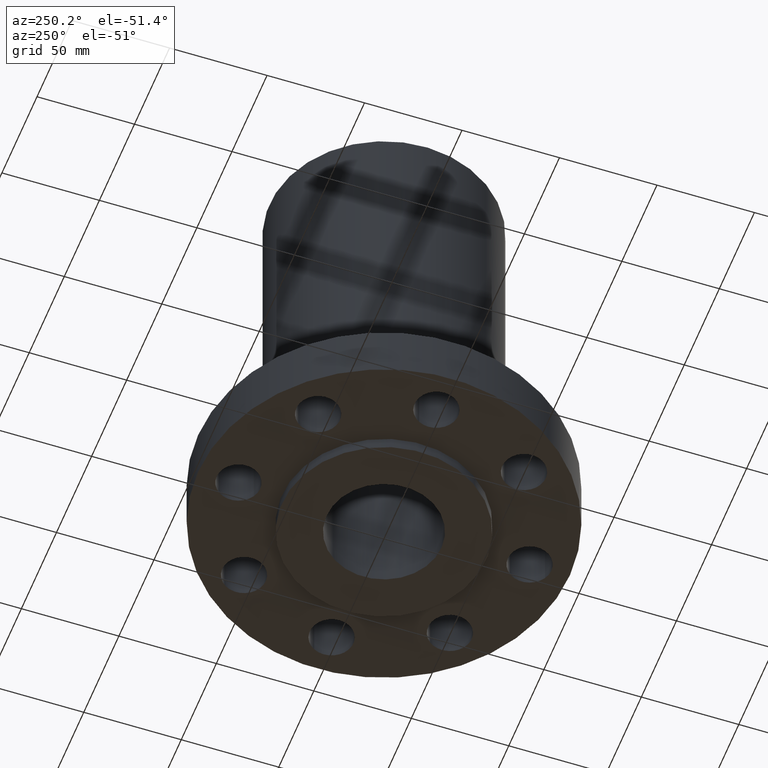
[diagram: clean part render]
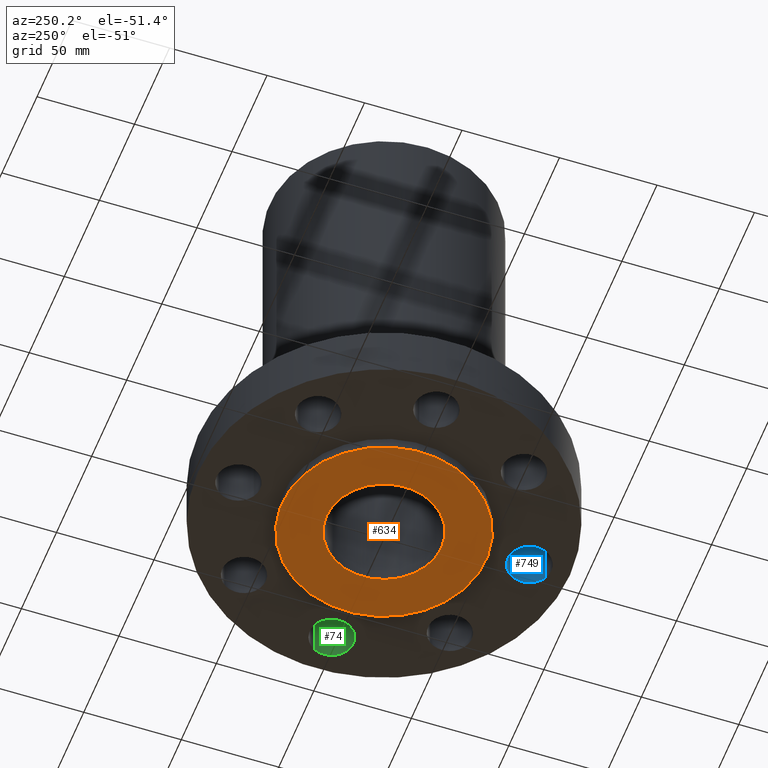
[diagram: same view with three faces highlighted in distinct colors, each labeled with its STEP entity id]
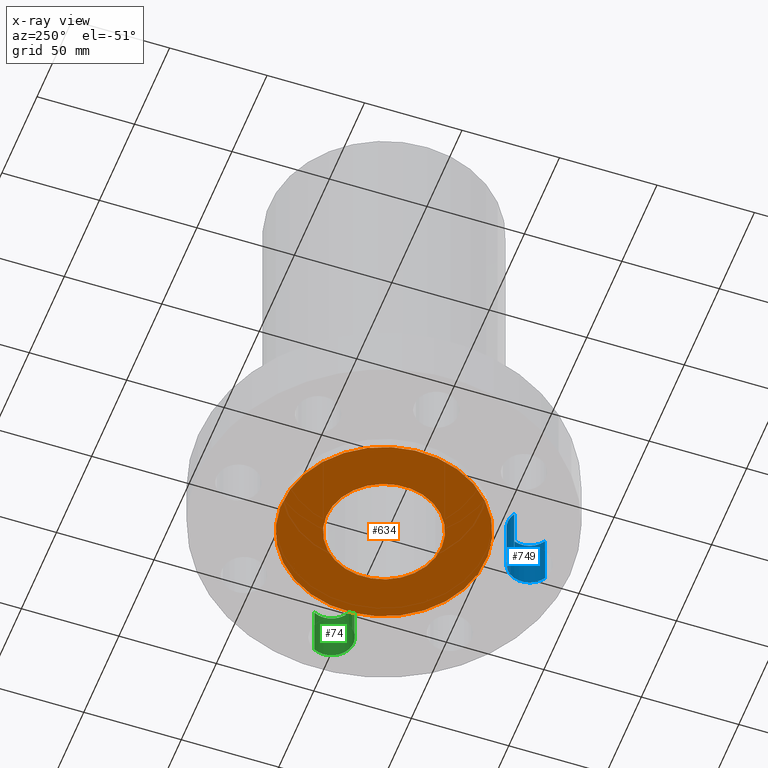
[diagram: x-ray of the same camera — body ghosted, the three highlighted faces saturated]
A machine part, auxiliary view with three faces highlighted in distinct colors.
The next image is the same camera in x-ray (body ghosted, the three faces saturated) — at least one of them is partly hidden behind the body in this view.
Their STEP definitions:

[orange] entity #634 — the highlighted planar face has unit normal (0, 0, -1).
#578=AXIS2_PLACEMENT_3D('Circle Axis2P3D',#576,#577,$) ;
#597=AXIS2_PLACEMENT_3D('Circle Axis2P3D',#595,#596,$) ;
#610=AXIS2_PLACEMENT_3D('Plane Axis2P3D',#607,#608,#609) ;
#614=AXIS2_PLACEMENT_3D('Circle Axis2P3D',#612,#613,$) ;
#623=AXIS2_PLACEMENT_3D('Circle Axis2P3D',#621,#622,$) ;
#573=CARTESIAN_POINT('Vertex',(0.556133624783,1.0179957718,-0.250000000001)) ;
#576=CARTESIAN_POINT('Axis2P3D Location',(0.,0.,-0.250000000001)) ;
#580=CARTESIAN_POINT('Vertex',(-0.556133624783,-1.0179957718,-0.250000000001)) ;
#595=CARTESIAN_POINT('Axis2P3D Location',(0.,0.,-0.250000000001)) ;
#607=CARTESIAN_POINT('Axis2P3D Location',(0.,1.16,-0.250000000001)) ;
#612=CARTESIAN_POINT('Axis2P3D Location',(0.,0.,-0.250000000001)) ;
#616=CARTESIAN_POINT('Vertex',(-0.987616609529,-1.8078200775,-0.250000000001)) ;
#618=CARTESIAN_POINT('Vertex',(0.987616609529,1.8078200775,-0.250000000001)) ;
#621=CARTESIAN_POINT('Axis2P3D Location',(0.,0.,-0.250000000001)) ;
#577=DIRECTION('Axis2P3D Direction',(0.,0.,-0.0393700787402)) ;
#596=DIRECTION('Axis2P3D Direction',(0.,0.,-0.0393700787402)) ;
#608=DIRECTION('Axis2P3D Direction',(0.,0.,-0.0393700787402)) ;
#609=DIRECTION('Axis2P3D XDirection',(0.0393700787402,0.,0.)) ;
#613=DIRECTION('Axis2P3D Direction',(0.,0.,-0.0393700787402)) ;
#622=DIRECTION('Axis2P3D Direction',(0.,0.,-0.0393700787402)) ;
#627=ORIENTED_EDGE('',*,*,#620,.T.) ;
#628=ORIENTED_EDGE('',*,*,#625,.T.) ;
#631=ORIENTED_EDGE('',*,*,#582,.F.) ;
#632=ORIENTED_EDGE('',*,*,#599,.F.) ;
#633=FACE_BOUND('',#630,.T.) ;
#634=ADVANCED_FACE('PartBody',(#629,#633),#611,.T.) ;
#579=CIRCLE('generated circle',#578,1.16) ;
#598=CIRCLE('generated circle',#597,1.16) ;
#615=CIRCLE('generated circle',#614,2.06000000001) ;
#624=CIRCLE('generated circle',#623,2.06000000001) ;
#582=EDGE_CURVE('',#574,#581,#579,.T.) ;
#599=EDGE_CURVE('',#581,#574,#598,.T.) ;
#620=EDGE_CURVE('',#617,#619,#615,.T.) ;
#625=EDGE_CURVE('',#619,#617,#624,.T.) ;
#626=EDGE_LOOP('',(#627,#628)) ;
#630=EDGE_LOOP('',(#631,#632)) ;
#629=FACE_OUTER_BOUND('',#626,.T.) ;
#611=PLANE('',#610) ;
#574=VERTEX_POINT('',#573) ;
#581=VERTEX_POINT('',#580) ;
#617=VERTEX_POINT('',#616) ;
#619=VERTEX_POINT('',#618) ;

[blue] entity #749 — the highlighted cylindrical surface (edge-blend (fillet) strip) has radius 11.176 mm, axis along (-0, 0, 1).
#154=AXIS2_PLACEMENT_3D('Circle Axis2P3D',#152,#153,$) ;
#710=AXIS2_PLACEMENT_3D('Cylinder Axis2P3D',#707,#708,#709) ;
#740=AXIS2_PLACEMENT_3D('Circle Axis2P3D',#738,#739,$) ;
#147=CARTESIAN_POINT('Vertex',(0.210947236987,-3.32613632725,0.)) ;
#149=CARTESIAN_POINT('Vertex',(-0.210947236987,-2.55386367278,0.)) ;
#152=CARTESIAN_POINT('Axis2P3D Location',(-2.09805925913E-016,-2.94000000001,0.)) ;
#707=CARTESIAN_POINT('Axis2P3D Location',(-3.79459389627E-016,-2.94000000001,0.00393700787402)) ;
#712=CARTESIAN_POINT('Line Origine',(-0.210947236987,-2.55386367278,0.560000000002)) ;
#716=CARTESIAN_POINT('Vertex',(-0.210947236987,-2.55386367278,1.12)) ;
#723=CARTESIAN_POINT('Vertex',(0.210947236987,-3.32613632725,1.12)) ;
#726=CARTESIAN_POINT('Line Origine',(0.210947236987,-3.32613632725,0.560000000002)) ;
#738=CARTESIAN_POINT('Axis2P3D Location',(-3.79459389627E-016,-2.94000000001,1.12)) ;
#153=DIRECTION('Axis2P3D Direction',(0.,0.,-0.0393700787402)) ;
#708=DIRECTION('Axis2P3D Direction',(-0.,0.,0.0393700787402)) ;
#709=DIRECTION('Axis2P3D XDirection',(0.0188750212049,-0.0345504945626,0.)) ;
#713=DIRECTION('Vector Direction',(0.,0.,0.0393700787402)) ;
#727=DIRECTION('Vector Direction',(0.,0.,0.0393700787402)) ;
#739=DIRECTION('Axis2P3D Direction',(-0.,0.,0.0393700787402)) ;
#714=VECTOR('Line Direction',#713,0.0393700787402) ;
#728=VECTOR('Line Direction',#727,0.0393700787402) ;
#744=ORIENTED_EDGE('',*,*,#730,.F.) ;
#745=ORIENTED_EDGE('',*,*,#742,.F.) ;
#746=ORIENTED_EDGE('',*,*,#718,.T.) ;
#747=ORIENTED_EDGE('',*,*,#156,.T.) ;
#749=ADVANCED_FACE('PartBody',(#748),#711,.F.) ;
#155=CIRCLE('generated circle',#154,0.440000000002) ;
#741=CIRCLE('generated circle',#740,0.440000000002) ;
#711=CYLINDRICAL_SURFACE('generated cylinder',#710,0.440000000002) ;
#156=EDGE_CURVE('',#150,#148,#155,.T.) ;
#718=EDGE_CURVE('',#717,#150,#715,.F.) ;
#730=EDGE_CURVE('',#724,#148,#729,.F.) ;
#742=EDGE_CURVE('',#717,#724,#741,.F.) ;
#743=EDGE_LOOP('',(#744,#745,#746,#747)) ;
#748=FACE_OUTER_BOUND('',#743,.T.) ;
#715=LINE('Line',#712,#714) ;
#729=LINE('Line',#726,#728) ;
#148=VERTEX_POINT('',#147) ;
#150=VERTEX_POINT('',#149) ;
#717=VERTEX_POINT('',#716) ;
#724=VERTEX_POINT('',#723) ;

[green] entity #74 — the highlighted cylindrical surface (edge-blend (fillet) strip) has radius 11.176 mm, axis along (0, -0, 1).
#38=AXIS2_PLACEMENT_3D('Cylinder Axis2P3D',#35,#36,#37) ;
#51=AXIS2_PLACEMENT_3D('Circle Axis2P3D',#49,#50,$) ;
#65=AXIS2_PLACEMENT_3D('Circle Axis2P3D',#63,#64,$) ;
#35=CARTESIAN_POINT('Axis2P3D Location',(2.94000000001,0.,0.00393700787402)) ;
#40=CARTESIAN_POINT('Line Origine',(2.55386367278,-0.210947236987,0.560000000002)) ;
#44=CARTESIAN_POINT('Vertex',(2.55386367278,-0.210947236987,1.12)) ;
#46=CARTESIAN_POINT('Vertex',(2.55386367278,-0.210947236987,2.2401153548E-016)) ;
#49=CARTESIAN_POINT('Axis2P3D Location',(2.94000000001,0.,1.12)) ;
#53=CARTESIAN_POINT('Vertex',(3.32613632725,0.210947236987,1.12)) ;
#56=CARTESIAN_POINT('Line Origine',(3.32613632725,0.210947236987,0.560000000002)) ;
#60=CARTESIAN_POINT('Vertex',(3.32613632725,0.210947236987,2.2401153548E-016)) ;
#63=CARTESIAN_POINT('Axis2P3D Location',(2.94000000001,0.,0.)) ;
#36=DIRECTION('Axis2P3D Direction',(0.,-0.,0.0393700787402)) ;
#37=DIRECTION('Axis2P3D XDirection',(0.0345504945626,0.0188750212049,0.)) ;
#41=DIRECTION('Vector Direction',(0.,0.,0.0393700787402)) ;
#50=DIRECTION('Axis2P3D Direction',(0.,-0.,0.0393700787402)) ;
#57=DIRECTION('Vector Direction',(0.,0.,0.0393700787402)) ;
#64=DIRECTION('Axis2P3D Direction',(0.,-0.,0.0393700787402)) ;
#42=VECTOR('Line Direction',#41,0.0393700787402) ;
#58=VECTOR('Line Direction',#57,0.0393700787402) ;
#69=ORIENTED_EDGE('',*,*,#48,.F.) ;
#70=ORIENTED_EDGE('',*,*,#55,.F.) ;
#71=ORIENTED_EDGE('',*,*,#62,.T.) ;
#72=ORIENTED_EDGE('',*,*,#67,.T.) ;
#74=ADVANCED_FACE('PartBody',(#73),#39,.F.) ;
#52=CIRCLE('generated circle',#51,0.440000000002) ;
#66=CIRCLE('generated circle',#65,0.440000000002) ;
#39=CYLINDRICAL_SURFACE('generated cylinder',#38,0.440000000002) ;
#48=EDGE_CURVE('',#45,#47,#43,.F.) ;
#55=EDGE_CURVE('',#54,#45,#52,.F.) ;
#62=EDGE_CURVE('',#54,#61,#59,.F.) ;
#67=EDGE_CURVE('',#61,#47,#66,.F.) ;
#68=EDGE_LOOP('',(#69,#70,#71,#72)) ;
#73=FACE_OUTER_BOUND('',#68,.T.) ;
#43=LINE('Line',#40,#42) ;
#59=LINE('Line',#56,#58) ;
#45=VERTEX_POINT('',#44) ;
#47=VERTEX_POINT('',#46) ;
#54=VERTEX_POINT('',#53) ;
#61=VERTEX_POINT('',#60) ;